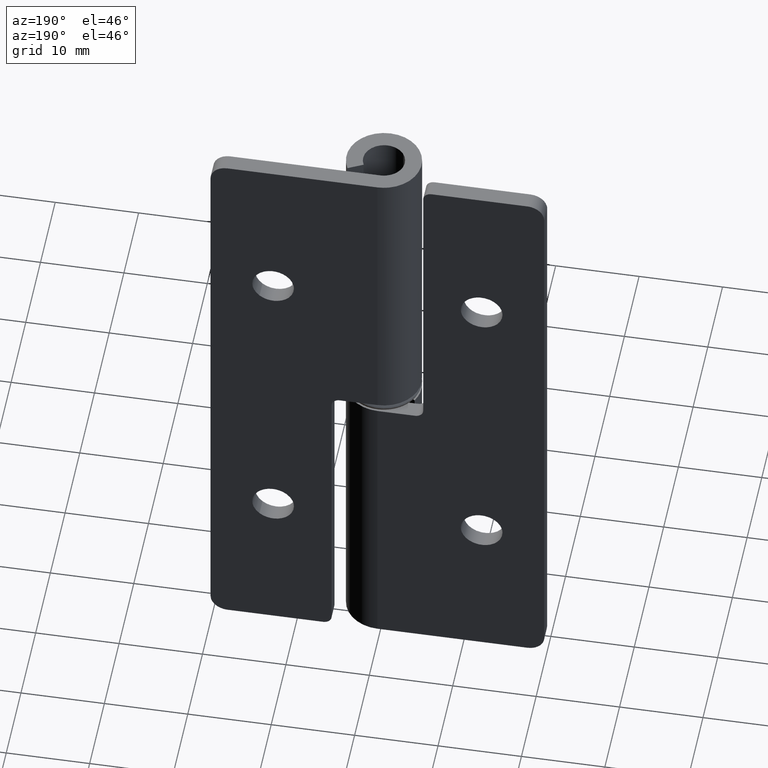
[diagram: clean part render]
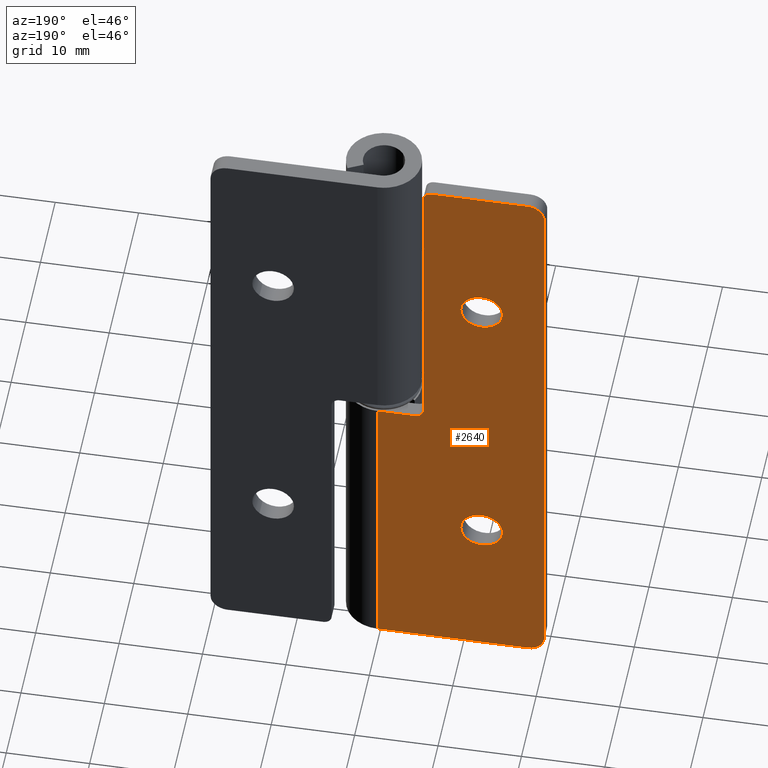
[diagram: same view with one face highlighted and labeled with its STEP entity id]
A machine part, auxiliary view. The second image highlights one B-rep face of the part: STEP entity #2640.
In plain terms, the highlighted face is a freeform B-spline surface patch.
Its self-contained STEP definition (entity closure, byte-faithful):
#2173=CARTESIAN_POINT('',(-10.0,4.499999999999915,56.0));
#2174=VERTEX_POINT('',#2173);
#2175=CARTESIAN_POINT('',(-12.303852260519740,4.499999999999915,58.492293334320181));
#2176=VERTEX_POINT('',#2175);
#2177=CARTESIAN_POINT('',(-10.0,4.499999999999915,56.0));
#2178=CARTESIAN_POINT('',(-10.0,4.499999999999915,58.310976228996104));
#2179=CARTESIAN_POINT('',(-12.303852260519740,4.499999999999917,58.492293334320181));
#2187=(BOUNDED_CURVE()B_SPLINE_CURVE(2,(#2177,#2178,#2179),.UNSPECIFIED.,.F.,.U.)B_SPLINE_CURVE_WITH_KNOTS((3,3),(0.0,0.236331300621717),.UNSPECIFIED.)CURVE()GEOMETRIC_REPRESENTATION_ITEM()RATIONAL_B_SPLINE_CURVE((1.0,0.723120658618142,0.969723356148756))REPRESENTATION_ITEM(''));
#2188=EDGE_CURVE('',#2174,#2176,#2187,.T.);
#2190=CARTESIAN_POINT('',(-12.696147739480260,4.499999999999913,53.507706665679819));
#2191=VERTEX_POINT('',#2190);
#2192=CARTESIAN_POINT('',(-12.696147739480255,4.499999999999915,53.507706665679819));
#2193=CARTESIAN_POINT('',(-12.598225267599869,4.499999999999915,53.499999999999993));
#2194=CARTESIAN_POINT('',(-12.500000000000000,4.499999999999915,53.500000000000000));
#2195=CARTESIAN_POINT('',(-10.000000000000002,4.499999999999915,53.500000000000007));
#2196=CARTESIAN_POINT('',(-10.0,4.499999999999915,56.0));
#2204=(BOUNDED_CURVE()B_SPLINE_CURVE(2,(#2192,#2193,#2194,#2195,#2196),.UNSPECIFIED.,.F.,.U.)B_SPLINE_CURVE_WITH_KNOTS((3,2,3),(0.736331300621718,0.750000000000000,1.0),.UNSPECIFIED.)CURVE()GEOMETRIC_REPRESENTATION_ITEM()RATIONAL_B_SPLINE_CURVE((0.969723356148756,0.983986122568406,1.0,0.707106781186548,1.0))REPRESENTATION_ITEM(''));
#2205=EDGE_CURVE('',#2191,#2174,#2204,.T.);
#2272=CARTESIAN_POINT('',(-15.0,4.499999999999915,56.0));
#2273=VERTEX_POINT('',#2272);
#2274=CARTESIAN_POINT('',(-12.303852260519740,4.499999999999917,58.492293334320181));
#2275=CARTESIAN_POINT('',(-12.401774732400131,4.499999999999915,58.500000000000000));
#2276=CARTESIAN_POINT('',(-12.500000000000000,4.499999999999915,58.500000000000000));
#2277=CARTESIAN_POINT('',(-15.000000000000009,4.499999999999915,58.499999999999993));
#2278=CARTESIAN_POINT('',(-15.0,4.499999999999915,56.0));
#2286=(BOUNDED_CURVE()B_SPLINE_CURVE(2,(#2274,#2275,#2276,#2277,#2278),.UNSPECIFIED.,.F.,.U.)B_SPLINE_CURVE_WITH_KNOTS((3,2,3),(0.236331300621717,0.250000000000000,0.500000000000000),.UNSPECIFIED.)CURVE()GEOMETRIC_REPRESENTATION_ITEM()RATIONAL_B_SPLINE_CURVE((0.969723356148756,0.983986122568405,1.0,0.707106781186548,1.0))REPRESENTATION_ITEM(''));
#2287=EDGE_CURVE('',#2176,#2273,#2286,.T.);
#2321=CARTESIAN_POINT('',(-15.0,4.499999999999915,56.0));
#2322=CARTESIAN_POINT('',(-15.000000000000002,4.499999999999914,53.689023771003903));
#2323=CARTESIAN_POINT('',(-12.696147739480255,4.499999999999915,53.507706665679819));
#2331=(BOUNDED_CURVE()B_SPLINE_CURVE(2,(#2321,#2322,#2323),.UNSPECIFIED.,.F.,.U.)B_SPLINE_CURVE_WITH_KNOTS((3,3),(0.500000000000000,0.736331300621718),.UNSPECIFIED.)CURVE()GEOMETRIC_REPRESENTATION_ITEM()RATIONAL_B_SPLINE_CURVE((1.0,0.723120658618142,0.969723356148756))REPRESENTATION_ITEM(''));
#2332=EDGE_CURVE('',#2273,#2191,#2331,.T.);
#2355=CARTESIAN_POINT('',(-10.0,4.499999999999915,19.0));
#2356=VERTEX_POINT('',#2355);
#2357=CARTESIAN_POINT('',(-12.303852260519740,4.499999999999915,21.492293334320181));
#2358=VERTEX_POINT('',#2357);
#2359=CARTESIAN_POINT('',(-10.0,4.499999999999915,19.0));
#2360=CARTESIAN_POINT('',(-9.999999999999998,4.499999999999914,21.310976228996104));
#2361=CARTESIAN_POINT('',(-12.303852260519747,4.499999999999915,21.492293334320173));
#2369=(BOUNDED_CURVE()B_SPLINE_CURVE(2,(#2359,#2360,#2361),.UNSPECIFIED.,.F.,.U.)B_SPLINE_CURVE_WITH_KNOTS((3,3),(0.0,0.236331300621718),.UNSPECIFIED.)CURVE()GEOMETRIC_REPRESENTATION_ITEM()RATIONAL_B_SPLINE_CURVE((1.0,0.723120658618142,0.969723356148756))REPRESENTATION_ITEM(''));
#2370=EDGE_CURVE('',#2356,#2358,#2369,.T.);
#2372=CARTESIAN_POINT('',(-12.696147739480260,4.499999999999914,16.507706665679819));
#2373=VERTEX_POINT('',#2372);
#2374=CARTESIAN_POINT('',(-12.696147739480255,4.499999999999915,16.507706665679819));
#2375=CARTESIAN_POINT('',(-12.598225267599869,4.499999999999915,16.499999999999996));
#2376=CARTESIAN_POINT('',(-12.500000000000000,4.499999999999915,16.500000000000000));
#2377=CARTESIAN_POINT('',(-10.000000000000002,4.499999999999915,16.499999999999993));
#2378=CARTESIAN_POINT('',(-10.0,4.499999999999915,19.0));
#2386=(BOUNDED_CURVE()B_SPLINE_CURVE(2,(#2374,#2375,#2376,#2377,#2378),.UNSPECIFIED.,.F.,.U.)B_SPLINE_CURVE_WITH_KNOTS((3,2,3),(0.736331300621718,0.750000000000000,1.0),.UNSPECIFIED.)CURVE()GEOMETRIC_REPRESENTATION_ITEM()RATIONAL_B_SPLINE_CURVE((0.969723356148756,0.983986122568406,1.0,0.707106781186548,1.0))REPRESENTATION_ITEM(''));
#2387=EDGE_CURVE('',#2373,#2356,#2386,.T.);
#2454=CARTESIAN_POINT('',(-15.0,4.499999999999915,19.0));
#2455=VERTEX_POINT('',#2454);
#2456=CARTESIAN_POINT('',(-12.303852260519747,4.499999999999915,21.492293334320173));
#2457=CARTESIAN_POINT('',(-12.401774732400130,4.499999999999915,21.499999999999996));
#2458=CARTESIAN_POINT('',(-12.500000000000000,4.499999999999915,21.500000000000000));
#2459=CARTESIAN_POINT('',(-15.000000000000009,4.499999999999915,21.499999999999996));
#2460=CARTESIAN_POINT('',(-15.0,4.499999999999915,19.0));
#2468=(BOUNDED_CURVE()B_SPLINE_CURVE(2,(#2456,#2457,#2458,#2459,#2460),.UNSPECIFIED.,.F.,.U.)B_SPLINE_CURVE_WITH_KNOTS((3,2,3),(0.236331300621718,0.250000000000000,0.500000000000000),.UNSPECIFIED.)CURVE()GEOMETRIC_REPRESENTATION_ITEM()RATIONAL_B_SPLINE_CURVE((0.969723356148756,0.983986122568406,1.0,0.707106781186548,1.0))REPRESENTATION_ITEM(''));
#2469=EDGE_CURVE('',#2358,#2455,#2468,.T.);
#2503=CARTESIAN_POINT('',(-15.0,4.499999999999915,19.0));
#2504=CARTESIAN_POINT('',(-15.000000000000002,4.499999999999914,16.689023771003892));
#2505=CARTESIAN_POINT('',(-12.696147739480255,4.499999999999915,16.507706665679819));
#2513=(BOUNDED_CURVE()B_SPLINE_CURVE(2,(#2503,#2504,#2505),.UNSPECIFIED.,.F.,.U.)B_SPLINE_CURVE_WITH_KNOTS((3,3),(0.500000000000000,0.736331300621718),.UNSPECIFIED.)CURVE()GEOMETRIC_REPRESENTATION_ITEM()RATIONAL_B_SPLINE_CURVE((1.0,0.723120658618142,0.969723356148756))REPRESENTATION_ITEM(''));
#2514=EDGE_CURVE('',#2455,#2373,#2513,.T.);
#2519=CARTESIAN_POINT('',(-20.998999961221390,4.499999999993200,-3.746249854635448));
#2520=CARTESIAN_POINT('',(0.999000497644588,4.500000000000234,-3.746249854635448));
#2521=CARTESIAN_POINT('',(-20.998999961221390,4.499999999993200,78.746251866292212));
#2522=CARTESIAN_POINT('',(0.999000497644588,4.500000000000234,78.746251866292212));
#2523=B_SPLINE_SURFACE_WITH_KNOTS('',1,1,((#2519,#2521),(#2520,#2522)),.UNSPECIFIED.,.F.,.F.,.U.,(2,2),(2,2),(0.0,21.998000458865970),(0.0,82.492501720927663),.UNSPECIFIED.);
#2524=CARTESIAN_POINT('',(-6.500000000000000,4.499999999997835,75.0));
#2525=VERTEX_POINT('',#2524);
#2526=CARTESIAN_POINT('',(-18.000000000031150,4.499999999994159,75.0));
#2527=VERTEX_POINT('',#2526);
#2528=CARTESIAN_POINT('',(-6.500000000000000,4.499999999997835,75.0));
#2529=CARTESIAN_POINT('',(-18.000000000031150,4.499999999994159,75.0));
#2530=QUASI_UNIFORM_CURVE('',1,(#2528,#2529),.UNSPECIFIED.,.F.,.U.);
#2531=EDGE_CURVE('',#2525,#2527,#2530,.T.);
#2532=ORIENTED_EDGE('',*,*,#2531,.F.);
#2533=CARTESIAN_POINT('',(-5.500000000000000,4.499999999999949,74.0));
#2534=VERTEX_POINT('',#2533);
#2535=CARTESIAN_POINT('',(-6.500000000000000,4.499999999997835,75.0));
#2536=CARTESIAN_POINT('',(-5.500000000000001,4.499999999998154,75.000000000000014));
#2537=CARTESIAN_POINT('',(-5.500000000000000,4.499999999998154,74.0));
#2545=(BOUNDED_CURVE()B_SPLINE_CURVE(2,(#2535,#2536,#2537),.UNSPECIFIED.,.F.,.U.)CURVE()GEOMETRIC_REPRESENTATION_ITEM()QUASI_UNIFORM_CURVE()RATIONAL_B_SPLINE_CURVE((1.0,0.707106781186548,1.0))REPRESENTATION_ITEM(''));
#2546=EDGE_CURVE('',#2525,#2534,#2545,.T.);
#2547=ORIENTED_EDGE('',*,*,#2546,.T.);
#2548=CARTESIAN_POINT('',(-5.500000000000000,4.499999999999949,38.0));
#2549=VERTEX_POINT('',#2548);
#2550=CARTESIAN_POINT('',(-5.500000000000000,4.499999999999949,74.0));
#2551=CARTESIAN_POINT('',(-5.500000000000000,4.499999999999949,38.0));
#2552=QUASI_UNIFORM_CURVE('',1,(#2550,#2551),.UNSPECIFIED.,.F.,.U.);
#2553=EDGE_CURVE('',#2534,#2549,#2552,.T.);
#2554=ORIENTED_EDGE('',*,*,#2553,.T.);
#2555=CARTESIAN_POINT('',(-4.500000000000000,4.499999999999949,37.0));
#2556=VERTEX_POINT('',#2555);
#2557=CARTESIAN_POINT('',(-5.500000000000000,4.499999999999949,38.0));
#2558=CARTESIAN_POINT('',(-5.500000000000001,4.499999999998184,37.0));
#2559=CARTESIAN_POINT('',(-4.500000000000000,4.499999999998504,37.0));
#2567=(BOUNDED_CURVE()B_SPLINE_CURVE(2,(#2557,#2558,#2559),.UNSPECIFIED.,.F.,.U.)CURVE()GEOMETRIC_REPRESENTATION_ITEM()QUASI_UNIFORM_CURVE()RATIONAL_B_SPLINE_CURVE((1.0,0.707106781186548,1.0))REPRESENTATION_ITEM(''));
#2568=EDGE_CURVE('',#2549,#2556,#2567,.T.);
#2569=ORIENTED_EDGE('',*,*,#2568,.T.);
#2570=CARTESIAN_POINT('',(-3.115130E-011,4.499999999999949,37.0));
#2571=VERTEX_POINT('',#2570);
#2572=CARTESIAN_POINT('',(-4.500000000000000,4.499999999999949,37.0));
#2573=CARTESIAN_POINT('',(-3.115130E-011,4.499999999999949,37.0));
#2574=QUASI_UNIFORM_CURVE('',1,(#2572,#2573),.UNSPECIFIED.,.F.,.U.);
#2575=EDGE_CURVE('',#2556,#2571,#2574,.T.);
#2576=ORIENTED_EDGE('',*,*,#2575,.T.);
#2577=CARTESIAN_POINT('',(-3.115169E-011,4.500000000000060,0.0));
#2578=VERTEX_POINT('',#2577);
#2579=CARTESIAN_POINT('',(-3.115130E-011,4.499999999999949,37.0));
#2580=CARTESIAN_POINT('',(-3.115169E-011,4.500000000000060,0.0));
#2581=QUASI_UNIFORM_CURVE('',1,(#2579,#2580),.UNSPECIFIED.,.F.,.U.);
#2582=EDGE_CURVE('',#2571,#2578,#2581,.T.);
#2583=ORIENTED_EDGE('',*,*,#2582,.T.);
#2584=CARTESIAN_POINT('',(-18.000000000031150,4.499999999994159,0.0));
#2585=VERTEX_POINT('',#2584);
#2586=CARTESIAN_POINT('',(-3.115169E-011,4.500000000000060,0.0));
#2587=CARTESIAN_POINT('',(-18.000000000031150,4.499999999994159,0.0));
#2588=QUASI_UNIFORM_CURVE('',1,(#2586,#2587),.UNSPECIFIED.,.F.,.U.);
#2589=EDGE_CURVE('',#2578,#2585,#2588,.T.);
#2590=ORIENTED_EDGE('',*,*,#2589,.T.);
#2591=CARTESIAN_POINT('',(-19.999999999987448,4.499999999993520,2.0));
#2592=VERTEX_POINT('',#2591);
#2593=CARTESIAN_POINT('',(-18.000000000031150,4.499999999994159,0.0));
#2594=CARTESIAN_POINT('',(-20.000000000031154,4.499999999993522,0.0));
#2595=CARTESIAN_POINT('',(-20.000000000031150,4.499999999993521,2.0));
#2603=(BOUNDED_CURVE()B_SPLINE_CURVE(2,(#2593,#2594,#2595),.UNSPECIFIED.,.F.,.U.)CURVE()GEOMETRIC_REPRESENTATION_ITEM()QUASI_UNIFORM_CURVE()RATIONAL_B_SPLINE_CURVE((1.0,0.707106781186548,1.0))REPRESENTATION_ITEM(''));
#2604=EDGE_CURVE('',#2585,#2592,#2603,.T.);
#2605=ORIENTED_EDGE('',*,*,#2604,.T.);
#2606=CARTESIAN_POINT('',(-19.999999999987448,4.499999999993520,73.0));
#2607=VERTEX_POINT('',#2606);
#2608=CARTESIAN_POINT('',(-19.999999999987448,4.499999999993520,73.0));
#2609=CARTESIAN_POINT('',(-19.999999999987448,4.499999999993520,2.0));
#2610=QUASI_UNIFORM_CURVE('',1,(#2608,#2609),.UNSPECIFIED.,.F.,.U.);
#2611=EDGE_CURVE('',#2607,#2592,#2610,.T.);
#2612=ORIENTED_EDGE('',*,*,#2611,.F.);
#2613=CARTESIAN_POINT('',(-19.999999999987448,4.499999999993520,73.0));
#2614=CARTESIAN_POINT('',(-20.000000000031154,4.499999999993522,75.000000000000014));
#2615=CARTESIAN_POINT('',(-18.000000000031150,4.499999999994159,75.0));
#2623=(BOUNDED_CURVE()B_SPLINE_CURVE(2,(#2613,#2614,#2615),.UNSPECIFIED.,.F.,.U.)CURVE()GEOMETRIC_REPRESENTATION_ITEM()QUASI_UNIFORM_CURVE()RATIONAL_B_SPLINE_CURVE((1.0,0.707106781186548,1.0))REPRESENTATION_ITEM(''));
#2624=EDGE_CURVE('',#2607,#2527,#2623,.T.);
#2625=ORIENTED_EDGE('',*,*,#2624,.T.);
#2626=EDGE_LOOP('',(#2532,#2547,#2554,#2569,#2576,#2583,#2590,#2605,#2612,#2625));
#2627=FACE_OUTER_BOUND('',#2626,.T.);
#2628=ORIENTED_EDGE('',*,*,#2514,.T.);
#2629=ORIENTED_EDGE('',*,*,#2387,.T.);
#2630=ORIENTED_EDGE('',*,*,#2370,.T.);
#2631=ORIENTED_EDGE('',*,*,#2469,.T.);
#2632=EDGE_LOOP('',(#2628,#2629,#2630,#2631));
#2633=FACE_BOUND('',#2632,.T.);
#2634=ORIENTED_EDGE('',*,*,#2332,.T.);
#2635=ORIENTED_EDGE('',*,*,#2205,.T.);
#2636=ORIENTED_EDGE('',*,*,#2188,.T.);
#2637=ORIENTED_EDGE('',*,*,#2287,.T.);
#2638=EDGE_LOOP('',(#2634,#2635,#2636,#2637));
#2639=FACE_BOUND('',#2638,.T.);
#2640=ADVANCED_FACE('',(#2627,#2633,#2639),#2523,.F.);